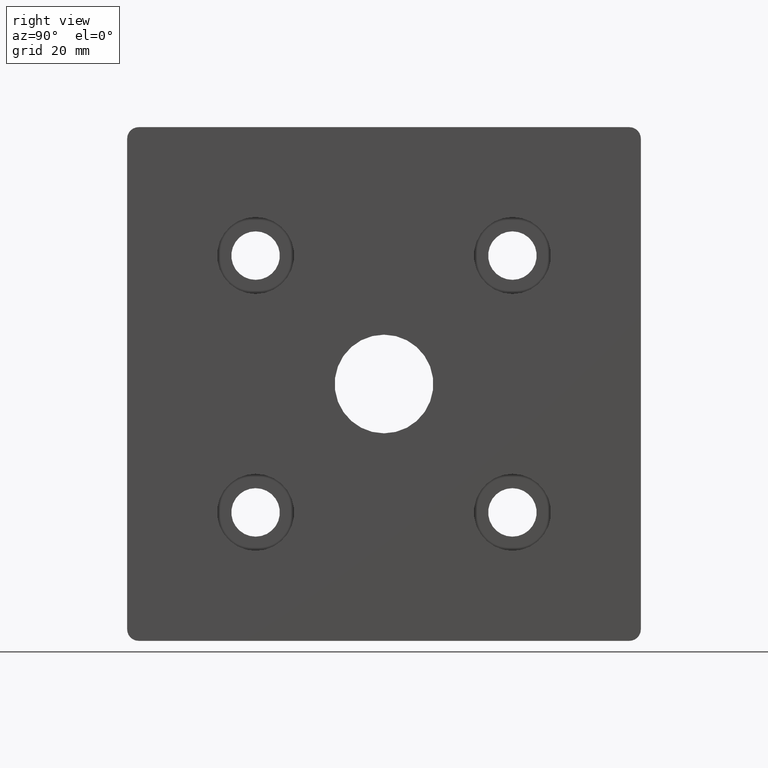
[diagram: clean part render]
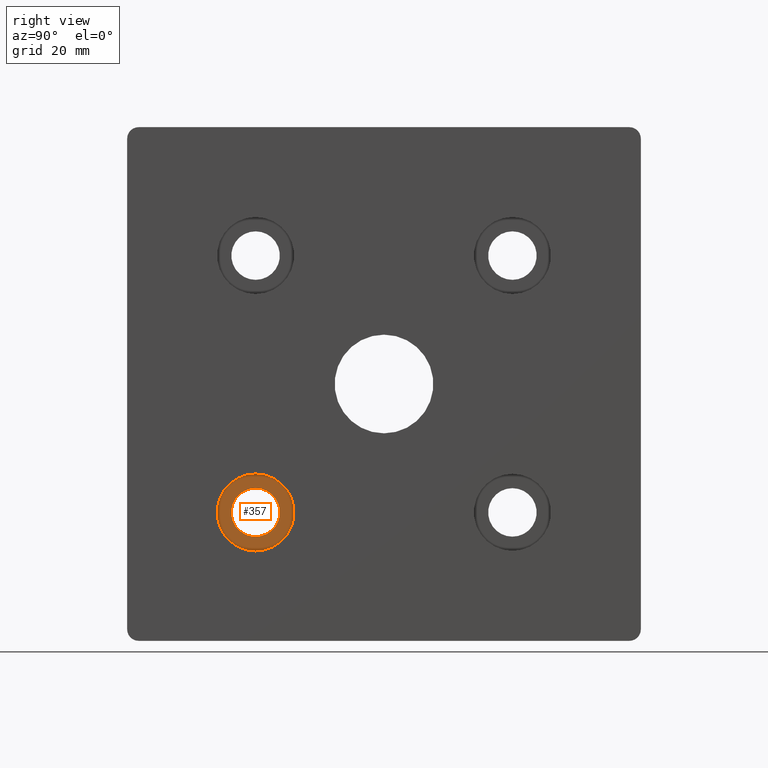
[diagram: same view with one face highlighted and labeled with its STEP entity id]
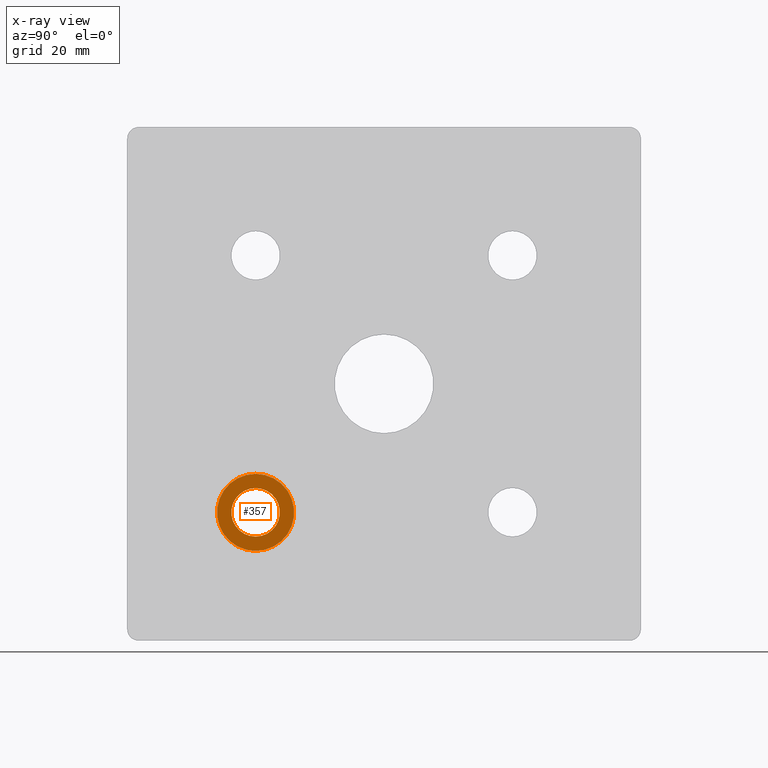
[diagram: x-ray of the same camera — body ghosted, the highlighted face saturated]
A machine part, right view. The second image highlights one B-rep face of the part: STEP entity #357.
The next image is the same camera in x-ray: the body ghosted, the highlighted face saturated — about 0% of this face is hidden behind the body in this view.
In plain terms, the highlighted planar face has unit normal (1, 0, 0).
Its self-contained STEP definition (entity closure, byte-faithful):
#21=FACE_BOUND('',#87,.T.);
#42=PLANE('',#396);
#57=FACE_OUTER_BOUND('',#86,.T.);
#86=EDGE_LOOP('',(#294));
#87=EDGE_LOOP('',(#295));
#163=CIRCLE('',#397,6.75);
#164=CIRCLE('',#398,4.25);
#197=VERTEX_POINT('',#600);
#198=VERTEX_POINT('',#602);
#238=EDGE_CURVE('',#197,#197,#163,.T.);
#239=EDGE_CURVE('',#198,#198,#164,.T.);
#294=ORIENTED_EDGE('',*,*,#238,.T.);
#295=ORIENTED_EDGE('',*,*,#239,.F.);
#357=ADVANCED_FACE('',(#57,#21),#42,.T.);
#396=AXIS2_PLACEMENT_3D('',#599,#485,#486);
#397=AXIS2_PLACEMENT_3D('',#601,#487,#488);
#398=AXIS2_PLACEMENT_3D('',#603,#489,#490);
#485=DIRECTION('center_axis',(1.,0.,0.));
#486=DIRECTION('ref_axis',(0.,0.,-1.));
#487=DIRECTION('center_axis',(1.,0.,0.));
#488=DIRECTION('ref_axis',(0.,0.,-1.));
#489=DIRECTION('center_axis',(1.,0.,0.));
#490=DIRECTION('ref_axis',(0.,0.,-1.));
#599=CARTESIAN_POINT('Origin',(9.5,-22.5,-22.5));
#600=CARTESIAN_POINT('',(9.5,-22.5,-29.25));
#601=CARTESIAN_POINT('Origin',(9.5,-22.5,-22.5));
#602=CARTESIAN_POINT('',(9.49999999999999,-22.5,-18.25));
#603=CARTESIAN_POINT('Origin',(9.49999999999999,-22.5,-22.5));